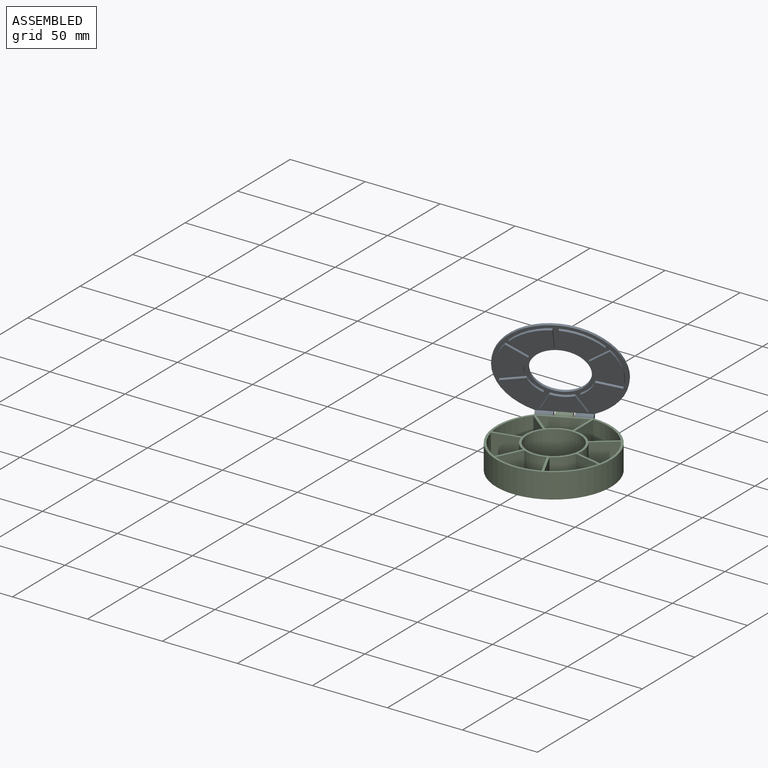
[diagram: assembled view]
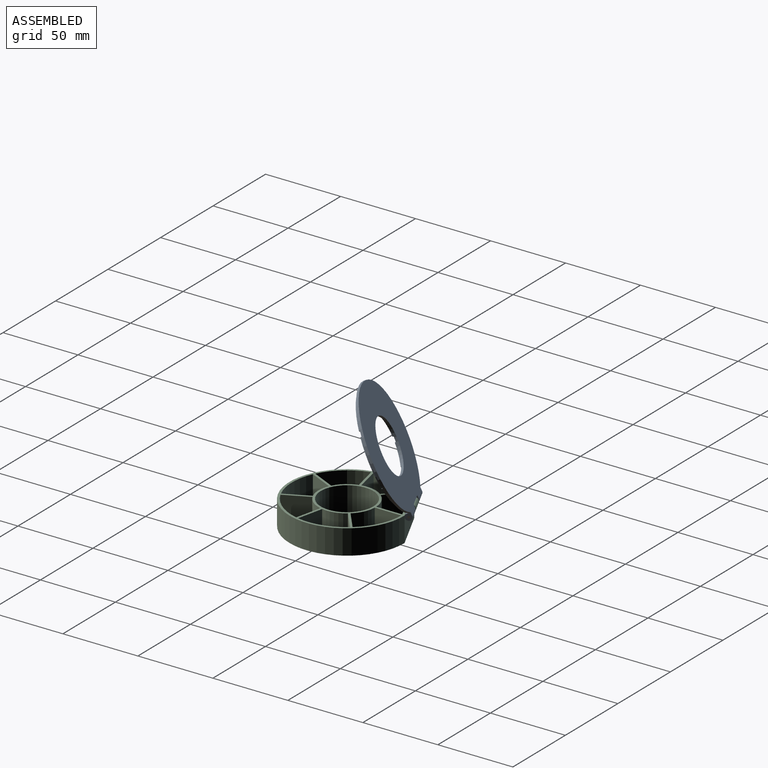
[diagram: assembled view, second angle]
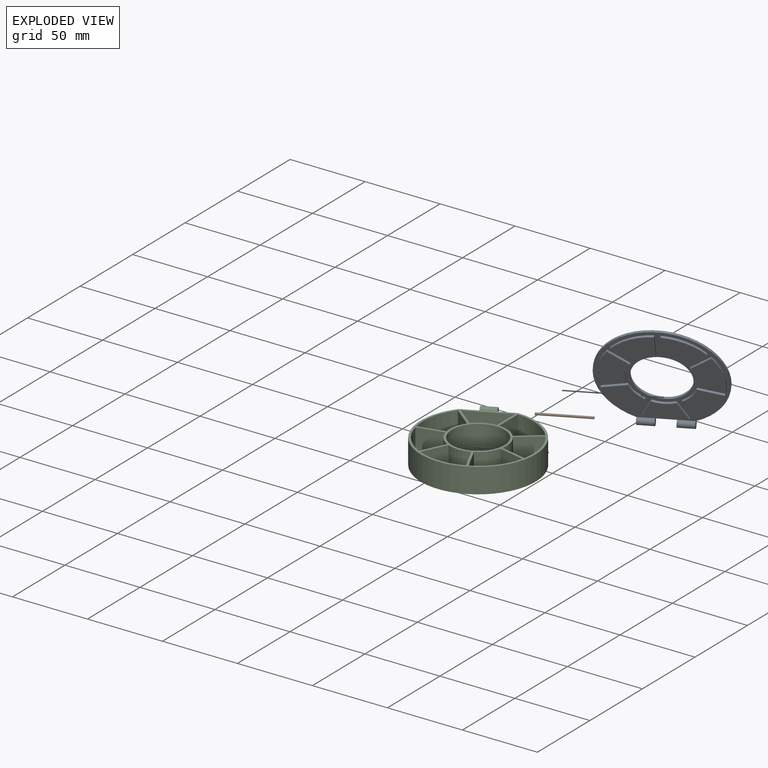
[diagram: exploded view]
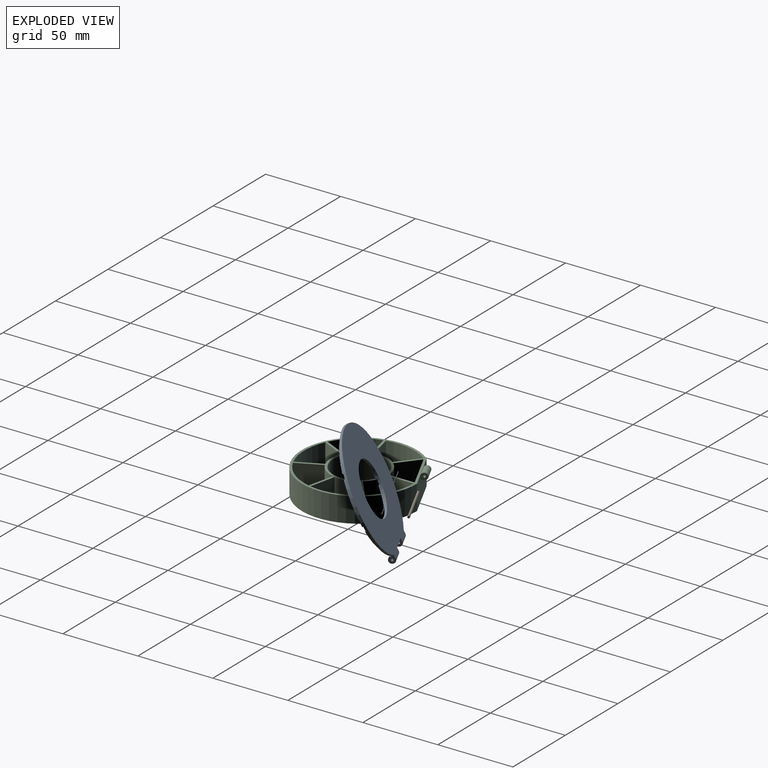
[diagram: exploded view, second angle]
ASSEMBLY  parts=3 mates=2
PART A: 50 faces, bbox 76.5x80.6x4.5 mm
  f0: plane 10.81x5.21mm, normal (-0.43,0.9,0), area 18mm2, adj f1,f4,f42,f47
  f1: plane 76.5x76.5mm, normal (0,0,-1), area 1256.9mm2, adj f0,f2,f3,f5,f6,f7,f8,f10
  f2: cylinder r=17.5mm len=35mm, axis (0,0,-1), area 164.9mm2, adj f1,f4
  f3: cylinder r=38.25mm len=76.5mm, axis (0,0,-1), area 309.5mm2, adj f1,f4,f41,f46
  f4: plane 78.53x76.5mm, normal (0,0,1), area 3599mm2, adj f0,f2,f3,f41,f42,f43,f46,f47
  f5: plane 14.79x1.5mm, normal (1,0,0), area 22.2mm2, adj f1,f6,f8,f9
  f6: plane 24.3x11.7mm, normal (-0.43,0.9,0), area 40.5mm2, adj f1,f5,f7,f9
  f7: plane 11.56x9.22mm, normal (-0.62,-0.78,0), area 22.2mm2, adj f1,f6,f8,f9
  f8: cylinder r=20mm len=12.74mm, axis (0,0,1), area 21.7mm2, adj f1,f5,f7,f9
  f9: plane 24.3x20.92mm, normal (0,0,-1), area 261.7mm2, adj f5,f6,f7,f8
  f10: plane 15.39x3.51mm, normal (0.22,-0.97,0), area 23.7mm2, adj f1,f11,f13,f14
  f11: cylinder r=20mm len=13.78mm, axis (0,0,1), area 21.7mm2, adj f1,f10,f12,f14
  f12: plane 12.34x9.84mm, normal (0.62,0.78,0), area 23.7mm2, adj f1,f11,f13,f14
  f13: cylinder r=35.75mm len=27.13mm, axis (0,0,1), area 42.9mm2, adj f1,f10,f12,f14
  f14: plane 27.13x19.08mm, normal (0,0,-1), area 338.9mm2, adj f10,f11,f12,f13
  f15: plane 14.22x6.85mm, normal (0.9,-0.43,0), area 23.7mm2, adj f1,f16,f18,f19
  f16: cylinder r=20mm len=11.05mm, axis (0,0,1), area 21.7mm2, adj f1,f15,f17,f19
  f17: plane 15.39x3.51mm, normal (-0.22,0.97,0), area 23.7mm2, adj f1,f16,f18,f19
  f18: cylinder r=35.75mm len=21.76mm, axis (0,0,1), area 42.9mm2, adj f1,f15,f17,f19
  f19: plane 25.27x24.2mm, normal (0,0,-1), area 338.9mm2, adj f15,f16,f17,f18
  f20: plane 14.22x6.85mm, normal (0.9,0.43,0), area 23.7mm2, adj f1,f21,f23,f24
  f21: cylinder r=20mm len=14.14mm, axis (0,0,1), area 21.7mm2, adj f1,f20,f22,f24
  f22: plane 14.22x6.85mm, normal (-0.9,0.43,0), area 23.7mm2, adj f1,f21,f23,f24
  f23: cylinder r=35.75mm len=27.83mm, axis (0,0,1), area 42.9mm2, adj f1,f20,f22,f24
  f24: plane 27.83x17.04mm, normal (0,0,-1), area 338.9mm2, adj f20,f21,f22,f23
  f25: plane 15.39x3.51mm, normal (0.22,0.97,0), area 23.7mm2, adj f1,f26,f28,f29
  f26: cylinder r=20mm len=11.05mm, axis (0,0,1), area 21.7mm2, adj f1,f25,f27,f29
  f27: plane 14.22x6.85mm, normal (-0.9,-0.43,0), area 23.7mm2, adj f1,f26,f28,f29
  f28: cylinder r=35.75mm len=21.76mm, axis (0,0,1), area 42.9mm2, adj f1,f25,f27,f29
  f29: plane 25.27x24.2mm, normal (0,0,-1), area 338.9mm2, adj f25,f26,f27,f28
  f30: plane 12.34x9.84mm, normal (-0.62,0.78,0), area 23.7mm2, adj f1,f31,f33,f34
  f31: cylinder r=20mm len=13.78mm, axis (0,0,1), area 21.7mm2, adj f1,f30,f32,f34
  f32: plane 15.39x3.51mm, normal (-0.22,-0.97,0), area 23.7mm2, adj f1,f31,f33,f34
  f33: cylinder r=35.75mm len=27.13mm, axis (0,0,1), area 42.9mm2, adj f1,f30,f32,f34
  f34: plane 27.13x19.08mm, normal (0,0,-1), area 338.9mm2, adj f30,f31,f32,f33
  f35: cylinder r=35.75mm len=25.08mm, axis (0,0,1), area 42.9mm2, adj f1,f36,f38,f39
  f36: plane 15.78x1.5mm, normal (-1,0,0), area 23.7mm2, adj f1,f35,f37,f39
  f37: cylinder r=20mm len=12.74mm, axis (0,0,1), area 21.7mm2, adj f1,f36,f38,f39
  f38: plane 12.34x9.84mm, normal (0.62,-0.78,0), area 23.7mm2, adj f1,f35,f37,f39
  f39: plane 25.08x21.92mm, normal (0,0,-1), area 338.9mm2, adj f35,f36,f37,f38
  f40: plane 9.41x4.53mm, normal (0.43,-0.9,0), area 7.8mm2, adj f1,f41,f42,f43
  f41: plane 4.5x4.05mm, normal (-0.9,-0.43,0), area 15.2mm2, adj f3,f4,f40,f43,f44
  f42: plane 4.5x4.05mm, normal (0.9,0.43,0), area 15.2mm2, adj f0,f4,f40,f43,f44
  f43: cylinder r=2.25mm len=11.36mm, axis (0.9,0.43,0), area 110.7mm2, adj f4,f40,f41,f42
  f44: cylinder r=0.75mm len=10.06mm, axis (0.9,0.43,0), area 49.2mm2, adj f41,f42
  f45: plane 9.41x4.53mm, normal (0.43,-0.9,0), area 7.8mm2, adj f1,f46,f47,f48
  f46: plane 4.5x4.05mm, normal (0.9,0.43,0), area 15.2mm2, adj f3,f4,f45,f48,f49
  f47: plane 4.5x4.05mm, normal (-0.9,-0.43,0), area 15.2mm2, adj f0,f4,f45,f48,f49
  f48: cylinder r=2.25mm len=11.36mm, axis (-0.9,-0.43,0), area 110.7mm2, adj f4,f45,f46,f47
  f49: cylinder r=0.75mm len=10.06mm, axis (-0.9,-0.43,0), area 49.2mm2, adj f46,f47
PART B: 3 faces, bbox 30.3x15.6x1.5 mm
  f0: plane 1.5x1.35mm, normal (-0.9,-0.43,0), area 1.8mm2, adj f1
  f1: cylinder r=0.75mm len=30.28mm, axis (0.9,0.43,0), area 155mm2, adj f0,f2
  f2: plane 1.5x1.35mm, normal (0.9,0.43,0), area 1.8mm2, adj f1
PART C: 140 faces, bbox 76.5x76.5x18 mm
  f0: plane 29.63x16.5mm, normal (-0.43,0.9,0), area 520.1mm2, adj f13,f31,f32,f40,f41,f43,f44
  f1: cylinder r=19mm len=15mm, axis (0,0,-1), area 233.3mm2, adj f2,f30,f31,f33
  f2: plane 17.31x15mm, normal (-0.22,0.97,0), area 266.4mm2, adj f1,f3,f31,f33
  f3: cylinder r=36.75mm len=29.77mm, axis (0,0,-1), area 472.3mm2, adj f2,f30,f31,f33
  f4: cylinder r=19mm len=15mm, axis (0,0,-1), area 233.3mm2, adj f5,f23,f31,f39
  f5: plane 17.31x15mm, normal (-0.22,-0.97,0), area 266.4mm2, adj f4,f6,f31,f39
  f6: cylinder r=36.75mm len=23.87mm, axis (0,0,-1), area 472.3mm2, adj f5,f23,f31,f39
  f7: cylinder r=19mm len=15mm, axis (0,0,-1), area 233.3mm2, adj f8,f24,f31,f38
  f8: plane 15x13.88mm, normal (0.62,-0.78,0), area 266.4mm2, adj f7,f9,f31,f38
  f9: cylinder r=36.75mm len=29.77mm, axis (0,0,-1), area 472.3mm2, adj f8,f24,f31,f38
  f10: cylinder r=19mm len=15mm, axis (0,0,-1), area 233.3mm2, adj f11,f25,f31,f37
  f11: plane 15x13.54mm, normal (0.62,0.78,0), area 259.8mm2, adj f10,f12,f31,f37
  f12: plane 27.17x15mm, normal (0.43,-0.9,0), area 452.3mm2, adj f11,f25,f31,f37
  f13: cylinder r=38.25mm len=76.5mm, axis (0,0,-1), area 3404.7mm2, adj f0,f31,f32
  f14: plane 17.76x15mm, normal (1,0,0), area 266.4mm2, adj f15,f27,f31,f36
  f15: cylinder r=36.75mm len=27.51mm, axis (0,0,-1), area 472.3mm2, adj f14,f16,f31,f36
  f16: plane 15x13.88mm, normal (-0.62,0.78,0), area 266.4mm2, adj f15,f27,f31,f36
  f17: cylinder r=36.75mm len=30.53mm, axis (0,0,-1), area 472.3mm2, adj f18,f28,f31,f35
  f18: plane 16x15mm, normal (0.9,-0.43,0), area 266.4mm2, adj f17,f19,f31,f35
  f19: cylinder r=19mm len=15.12mm, axis (0,0,-1), area 233.3mm2, adj f18,f28,f31,f35
  f20: cylinder r=36.75mm len=23.87mm, axis (0,0,-1), area 472.3mm2, adj f21,f29,f31,f34
  f21: plane 17.31x15mm, normal (0.22,-0.97,0), area 266.4mm2, adj f20,f22,f31,f34
  f22: cylinder r=19mm len=15mm, axis (0,0,-1), area 233.3mm2, adj f21,f29,f31,f34
  f23: plane 16x15mm, normal (0.9,0.43,0), area 266.4mm2, adj f4,f6,f31,f39
  f24: plane 17.31x15mm, normal (0.22,0.97,0), area 266.4mm2, adj f7,f9,f31,f38
  f25: plane 17.32x15mm, normal (-1,0,0), area 259.8mm2, adj f10,f12,f31,f37
  f26: cylinder r=17.5mm len=35mm, axis (0,0,-1), area 1814.3mm2, adj f31,f32
  f27: cylinder r=19mm len=15mm, axis (0,0,-1), area 233.3mm2, adj f14,f16,f31,f36
  f28: plane 16x15mm, normal (-0.9,-0.43,0), area 266.4mm2, adj f17,f19,f31,f35
  f29: plane 16x15mm, normal (-0.9,0.43,0), area 266.4mm2, adj f20,f22,f31,f34
  f30: plane 15x13.88mm, normal (-0.62,-0.78,0), area 266.4mm2, adj f1,f3,f31,f33
  f31: plane 76.5x76.5mm, normal (0,0,1), area 709.7mm2, adj f0,f1,f2,f3,f4,f5,f6,f7
  f32: plane 76.5x76.5mm, normal (0,0,-1), area 3552mm2, adj f0,f13,f26
  f33: plane 29.77x21.44mm, normal (0,0,1), area 386.1mm2, adj f1,f2,f3,f30,f114,f115,f116,f117
  f34: plane 27.82x26.74mm, normal (0,0,1), area 389.7mm2, adj f20,f21,f22,f29,f103,f104,f105,f106
  f35: plane 30.53x19.32mm, normal (0,0,1), area 392.8mm2, adj f17,f18,f19,f28,f94,f95,f96,f97
  f36: plane 27.51x24.32mm, normal (0,0,1), area 359.4mm2, adj f14,f15,f16,f27,f45,f46,f47,f48
  f37: plane 27.17x23.88mm, normal (0,0,1), area 337.3mm2, adj f10,f11,f12,f25
  f38: plane 29.77x21.44mm, normal (0,0,1), area 392.8mm2, adj f7,f8,f9,f24,f64,f65,f66,f67
  f39: plane 27.82x26.74mm, normal (0,0,1), area 359.6mm2, adj f4,f5,f6,f23,f73,f74,f75,f76
  f40: plane 4.5x4.05mm, normal (-0.9,-0.43,0), area 15.2mm2, adj f0,f42,f43,f44
  f41: plane 4.5x4.05mm, normal (0.9,0.43,0), area 15.2mm2, adj f0,f42,f43,f44
  f42: cylinder r=0.75mm len=9.66mm, axis (0.9,0.43,0), area 47.1mm2, adj f40,f41
  f43: cylinder r=2.25mm len=10.96mm, axis (0.9,0.43,0), area 106mm2, adj f0,f40,f41,f44
  f44: plane 9.99x6.37mm, normal (0,0,-1), area 22.5mm2, adj f0,f40,f41,f43
  f45: plane 11.02x1mm, normal (-1,0.08,0), area 11.1mm2, adj f36,f46,f62,f63
  f46: plane 1x0.98mm, normal (-0.43,-0.9,0), area 1.1mm2, adj f36,f45,f47,f63
  f47: plane 8.07x7.56mm, normal (0.68,-0.73,0), area 11.1mm2, adj f36,f46,f48,f63
  f48: plane 1x0.06mm, normal (-0.43,-0.9,0), area 0.1mm2, adj f36,f47,f49,f63
  f49: extruded ~2.48x1.32mm, area 2.8mm2, adj f36,f48,f50,f63
  f50: plane 6.76x3.26mm, normal (-0.9,0.43,0), area 7.5mm2, adj f36,f49,f51,f63
  f51: plane 1.22x1mm, normal (-0.43,-0.9,0), area 1.4mm2, adj f36,f50,f52,f63
  f52: plane 10.5x5.06mm, normal (0.9,-0.43,0), area 11.7mm2, adj f36,f51,f53,f63
  f53: plane 1.82x1mm, normal (0.43,0.9,0), area 2mm2, adj f36,f52,f54,f63
  f54: plane 7.52x7.04mm, normal (-0.68,0.73,0), area 10.3mm2, adj f36,f53,f55,f63
  f55: plane 1x0.06mm, normal (0.43,0.9,0), area 0.1mm2, adj f36,f54,f56,f63
  f56: plane 10.26x1mm, normal (1,-0.08,0), area 10.3mm2, adj f36,f55,f57,f63
  f57: plane 1.84x1mm, normal (0.43,0.9,0), area 2mm2, adj f36,f56,f58,f63
  f58: plane 10.5x5.06mm, normal (-0.9,0.43,0), area 11.7mm2, adj f36,f57,f59,f63
  f59: plane 1.13x1mm, normal (-0.43,-0.9,0), area 1.3mm2, adj f36,f58,f60,f63
  f60: plane 6.68x3.22mm, normal (0.9,-0.43,0), area 7.4mm2, adj f36,f59,f61,f63
  f61: extruded ~2.68x1.16mm, area 2.9mm2, adj f36,f60,f62,f63
  f62: plane 1x0.06mm, normal (-0.43,-0.9,0), area 0.1mm2, adj f36,f45,f61,f63
  f63: plane 15.5x15.45mm, normal (0,0,1), area 58mm2, adj f45,f46,f47,f48,f49,f50,f51,f52
  f64: plane 1.32x1mm, normal (-0.97,-0.22,0), area 1.4mm2, adj f38,f65,f71,f72
  f65: plane 10.19x2.32mm, normal (0.22,-0.97,0), area 10.4mm2, adj f38,f64,f66,f72
  f66: plane 3.6x1mm, normal (-0.97,-0.22,0), area 3.7mm2, adj f38,f65,f67,f72
  f67: plane 1.17x1mm, normal (0.22,-0.97,0), area 1.2mm2, adj f38,f66,f68,f72
  f68: plane 8.51x1.94mm, normal (0.97,0.22,0), area 8.7mm2, adj f38,f67,f69,f72
  f69: plane 1.17x1mm, normal (-0.22,0.97,0), area 1.2mm2, adj f38,f68,f70,f72
  f70: plane 3.6x1mm, normal (-0.97,-0.22,0), area 3.7mm2, adj f38,f69,f71,f72
  f71: plane 10.19x2.32mm, normal (-0.22,0.97,0), area 10.4mm2, adj f38,f64,f70,f72
  f72: plane 12.48x8.78mm, normal (0,0,1), area 24.7mm2, adj f64,f65,f66,f67,f68,f69,f70,f71
  f73: plane 1.05x1mm, normal (-0.78,0.62,0), area 1.3mm2, adj f39,f74,f92,f93
  f74: plane 9.7x7.17mm, normal (-0.8,-0.59,0), area 12.1mm2, adj f39,f73,f75,f93
  f75: plane 1.12x1mm, normal (0.78,-0.62,0), area 1.4mm2, adj f39,f74,f76,f93
  f76: plane 5.91x4.47mm, normal (0.8,0.6,0), area 7.4mm2, adj f39,f75,f77,f93
  f77: extruded ~2.17x1.8mm, area 2.8mm2, adj f39,f76,f78,f93
  f78: extruded ~2.58x1.24mm, area 2.9mm2, adj f39,f77,f79,f93
  f79: plane 6.95x2.74mm, normal (-0.37,-0.93,0), area 7.5mm2, adj f39,f78,f80,f93
  f80: plane 1.12x1mm, normal (0.78,-0.62,0), area 1.4mm2, adj f39,f79,f81,f93
  f81: plane 6.05x4.24mm, normal (0.82,0.57,0), area 7.4mm2, adj f39,f80,f82,f93
  f82: extruded ~2.28x1.83mm, area 2.9mm2, adj f39,f81,f83,f93
  f83: extruded ~2.49x1.27mm, area 2.8mm2, adj f39,f82,f84,f93
  f84: plane 6.77x3.05mm, normal (-0.41,-0.91,0), area 7.4mm2, adj f39,f83,f85,f93
  f85: plane 1.12x1mm, normal (0.78,-0.62,0), area 1.4mm2, adj f39,f84,f86,f93
  f86: plane 11.04x4.84mm, normal (0.4,0.92,0), area 12.1mm2, adj f39,f85,f87,f93
  f87: plane 1.05x1mm, normal (-0.78,0.62,0), area 1.3mm2, adj f39,f86,f88,f93
  f88: plane 6.62x4.64mm, normal (-0.82,-0.57,0), area 8.1mm2, adj f39,f87,f89,f93
  f89: extruded ~1.87x1.45mm, area 2.4mm2, adj f39,f88,f90,f93
  f90: extruded ~1x0.88mm, area 1mm2, adj f39,f89,f91,f93
  f91: extruded ~1.26x1mm, area 1.4mm2, adj f39,f90,f92,f93
  f92: plane 7.56x3.03mm, normal (0.37,0.93,0), area 8.1mm2, adj f39,f73,f91,f93
  f93: plane 16.31x16.31mm, normal (0,0,1), area 57.9mm2, adj f73,f74,f75,f76,f77,f78,f79,f80
  f94: plane 1.35x1mm, normal (0,1,0), area 1.4mm2, adj f35,f95,f101,f102
  f95: plane 10.45x1mm, normal (-1,0,0), area 10.4mm2, adj f35,f94,f96,f102
  f96: plane 3.69x1mm, normal (0,1,0), area 3.7mm2, adj f35,f95,f97,f102
  f97: plane 1.2x1mm, normal (-1,0,0), area 1.2mm2, adj f35,f96,f98,f102
  f98: plane 8.73x1mm, normal (0,-1,0), area 8.7mm2, adj f35,f97,f99,f102
  f99: plane 1.2x1mm, normal (1,0,0), area 1.2mm2, adj f35,f98,f100,f102
  f100: plane 3.69x1mm, normal (0,1,0), area 3.7mm2, adj f35,f99,f101,f102
  f101: plane 10.45x1mm, normal (1,0,0), area 10.4mm2, adj f35,f94,f100,f102
  f102: plane 11.65x8.73mm, normal (0,0,1), area 24.7mm2, adj f94,f95,f96,f97,f98,f99,f100,f101
  f103: plane 1.06x1mm, normal (0.78,0.62,0), area 1.4mm2, adj f34,f104,f112,f113
  f104: plane 3.89x3.11mm, normal (-0.62,0.78,0), area 5mm2, adj f34,f103,f105,f113
  f105: plane 3.78x3.01mm, normal (0.78,0.62,0), area 4.8mm2, adj f34,f104,f106,f113
  f106: plane 1x0.94mm, normal (-0.62,0.78,0), area 1.2mm2, adj f34,f105,f107,f113
  f107: plane 3.78x3.01mm, normal (-0.78,-0.62,0), area 4.8mm2, adj f34,f106,f108,f113
  f108: plane 3.33x2.66mm, normal (-0.62,0.78,0), area 4.3mm2, adj f34,f107,f109,f113
  f109: plane 4.02x3.21mm, normal (0.78,0.62,0), area 5.1mm2, adj f34,f108,f110,f113
  f110: plane 1x0.94mm, normal (-0.62,0.78,0), area 1.2mm2, adj f34,f109,f111,f113
  f111: plane 5.08x4.05mm, normal (-0.78,-0.62,0), area 6.5mm2, adj f34,f110,f112,f113
  f112: plane 9.11x7.26mm, normal (0.62,-0.78,0), area 11.7mm2, adj f34,f103,f111,f113
  f113: plane 13.16x8.99mm, normal (0,0,1), area 27.8mm2, adj f103,f104,f105,f106,f107,f108,f109,f110
  f114: extruded ~2.09x1.62mm, area 2.7mm2, adj f33,f115,f138,f139
  f115: extruded ~2.05x1mm, area 2.1mm2, adj f33,f114,f116,f139
  f116: extruded ~2.15x1.93mm, area 2.9mm2, adj f33,f115,f117,f139
  f117: extruded ~1.42x1.06mm, area 1.8mm2, adj f33,f116,f118,f139
  f118: extruded ~1x0.86mm, area 1mm2, adj f33,f117,f119,f139
  f119: extruded ~1.02x1mm, area 1mm2, adj f33,f118,f120,f139
  f120: extruded ~1.12x1mm, area 1.5mm2, adj f33,f119,f121,f139
  f121: extruded ~1.74x1mm, area 1.8mm2, adj f33,f120,f122,f139
  f122: extruded ~2.6x1.21mm, area 2.9mm2, adj f33,f121,f123,f139
  f123: plane 1.05x1mm, normal (0.54,0.84,0), area 1.3mm2, adj f33,f122,f124,f139
  f124: extruded ~2.97x1.33mm, area 3.3mm2, adj f33,f123,f125,f139
  f125: extruded ~2.79x1mm, area 2.8mm2, adj f33,f124,f126,f139
  f126: extruded ~1.86x1.46mm, area 2.5mm2, adj f33,f125,f127,f139
  f127: extruded ~2.18x1mm, area 2.2mm2, adj f33,f126,f128,f139
  f128: extruded ~1.96x1.86mm, area 2.7mm2, adj f33,f127,f129,f139
  f129: extruded ~1.52x1.11mm, area 1.9mm2, adj f33,f128,f130,f139
  f130: extruded ~1x0.88mm, area 1.1mm2, adj f33,f129,f131,f139
  f131: extruded ~1.02x1mm, area 1mm2, adj f33,f130,f132,f139
  f132: extruded ~1.24x1mm, area 1.7mm2, adj f33,f131,f133,f139
  f133: extruded ~2.1x1mm, area 2.1mm2, adj f33,f132,f134,f139
  f134: extruded ~1.59x1mm, area 1.7mm2, adj f33,f133,f135,f139
  f135: extruded ~1.42x1mm, area 1.6mm2, adj f33,f134,f136,f139
  f136: plane 1.27x1mm, normal (-0.22,-0.97,0), area 1.3mm2, adj f33,f135,f137,f139
  f137: extruded ~2.99x1.23mm, area 3.3mm2, adj f33,f136,f138,f139
  f138: extruded ~3.14x1mm, area 3.2mm2, adj f33,f114,f137,f139
  f139: plane 12.05x9.27mm, normal (0,0,1), area 31.4mm2, adj f114,f115,f116,f117,f118,f119,f120,f121
PLACE A rot(axis=(-0.9,-0.43,0),65.4deg) t=(-2.86,7.67,36.58)mm
PLACE B t=(0.83,0,-5.17)mm
PLACE C t=(0.83,0,-5.17)mm fixed
MATE revolute A.f48 <-> B.f1  axis (0.9,0.43,0) through (-29.94,26.01,9.08)mm
MATE fastened B.f1 <-> C.f42  axis (0.9,0.43,0) through (-15.13,33.15,9.08)mm
